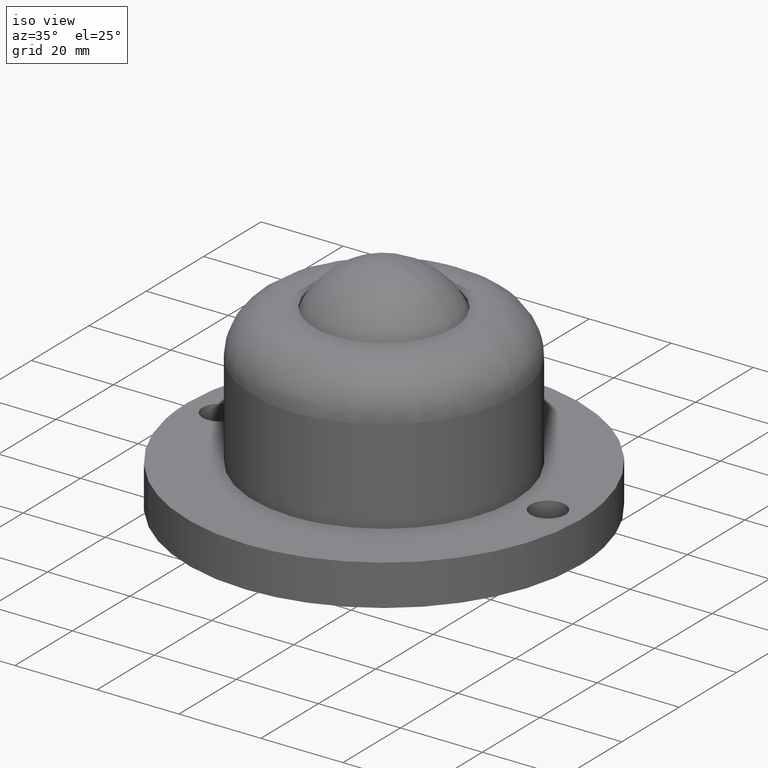
[diagram: clean part render]
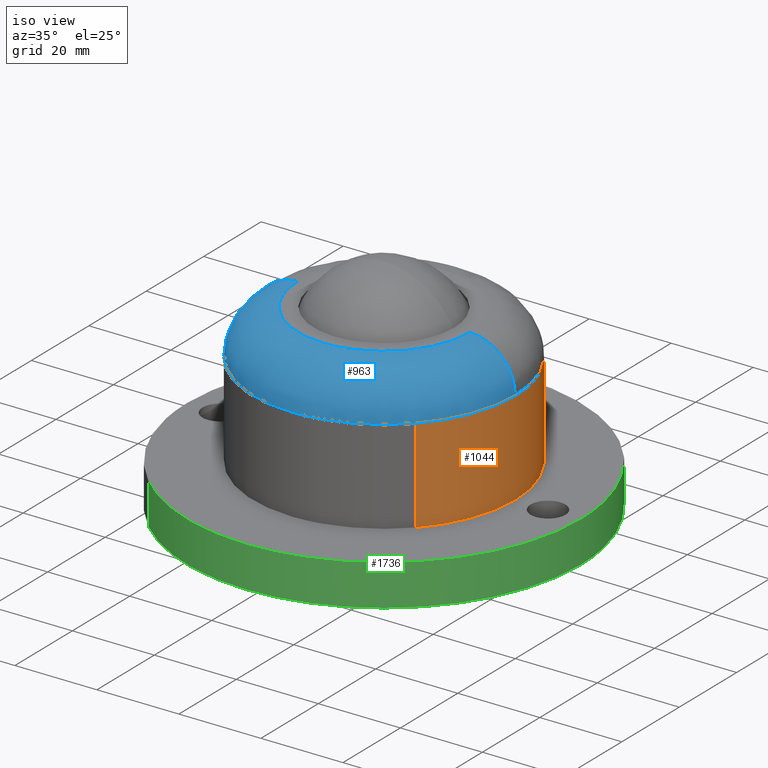
[diagram: same view with three faces highlighted in distinct colors, each labeled with its STEP entity id]
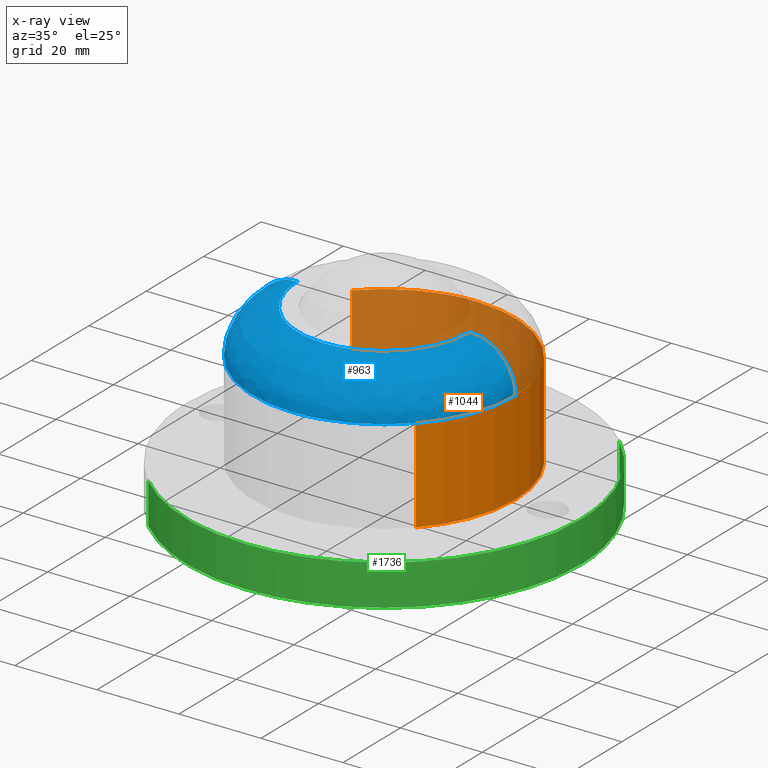
[diagram: x-ray of the same camera — body ghosted, the three highlighted faces saturated]
A machine part, iso view with three faces highlighted in distinct colors.
The next image is the same camera in x-ray (body ghosted, the three faces saturated) — at least one of them is partly hidden behind the body in this view.
Their STEP definitions:

[orange] entity #1044 — the highlighted face is a freeform B-spline surface patch.
#821=CARTESIAN_POINT('',(31.999999999986311,1.751002E-015,32.999987729901001));
#822=VERTEX_POINT('',#821);
#837=CARTESIAN_POINT('',(0.000001200578397,31.999999999999979,32.999987729900852));
#838=VERTEX_POINT('',#837);
#839=CARTESIAN_POINT('',(0.000001200578397,31.999999999999979,32.999987729900852));
#840=CARTESIAN_POINT('',(1.243545933864249,32.000027686290437,32.999987729900802));
#841=CARTESIAN_POINT('',(3.926985982258654,31.843403373049199,32.999987729900937));
#842=CARTESIAN_POINT('',(8.118901102339510,31.063015851764380,32.999987729900909));
#843=CARTESIAN_POINT('',(12.720821336361400,29.511403242763301,32.999987729900951));
#844=CARTESIAN_POINT('',(16.847604723427882,27.338062793029771,32.999987729900397));
#845=CARTESIAN_POINT('',(20.505664823581530,24.676734177825558,32.999987729901427));
#846=CARTESIAN_POINT('',(23.659619054415209,21.710687191173779,32.999987729900617));
#847=CARTESIAN_POINT('',(26.805970803443969,17.754875717246090,32.999987729901171));
#848=CARTESIAN_POINT('',(29.214600667731780,13.378631801025341,32.999987729900951));
#849=CARTESIAN_POINT('',(30.729771445561180,9.184042836501583,32.999987729900973));
#850=CARTESIAN_POINT('',(31.731307148809851,4.908668987190709,32.999987729901122));
#851=CARTESIAN_POINT('',(32.000177443627791,1.898057733687433,32.999987729900923));
#852=CARTESIAN_POINT('',(31.999999999986311,1.751002E-015,32.999987729901001));
#853=B_SPLINE_CURVE_WITH_KNOTS('',3,(#839,#840,#841,#842,#843,#844,#845,#846,#847,#848,#849,#850,#851,#852),.UNSPECIFIED.,.F.,.U.,(4,1,1,1,1,1,1,1,1,1,1,4),(0.000000059490198,3.730641181501298,8.050337676145482,12.762741478385861,18.260537489235571,21.991185462595649,26.310831705121149,31.219625673966689,37.110121125184321,41.233483651612488,44.571424372436752,50.265560632708556),.UNSPECIFIED.);
#854=EDGE_CURVE('',#838,#822,#853,.T.);
#856=CARTESIAN_POINT('',(-23.211979667101119,22.027346203090371,32.999987729899402));
#857=VERTEX_POINT('',#856);
#858=CARTESIAN_POINT('',(-23.211979667101119,22.027346203090371,32.999987729899402));
#859=CARTESIAN_POINT('',(-22.141287610224861,23.155744639412781,32.999987729899459));
#860=CARTESIAN_POINT('',(-20.235954420431529,24.890603156129021,32.999987729899573));
#861=CARTESIAN_POINT('',(-16.759838030516139,27.362894394207139,32.999987729899772));
#862=CARTESIAN_POINT('',(-13.410097302114959,29.155518530625180,32.999987729900113));
#863=CARTESIAN_POINT('',(-9.292722674067973,30.711942111646529,32.999987729900077));
#864=CARTESIAN_POINT('',(-5.004711051205183,31.736766049744020,32.999987729900589));
#865=CARTESIAN_POINT('',(-1.690789872268687,32.000090896721957,32.999987729900631));
#866=CARTESIAN_POINT('',(0.000001200578397,31.999999999999979,32.999987729900852));
#867=B_SPLINE_CURVE_WITH_KNOTS('',3,(#858,#859,#860,#861,#862,#863,#864,#865,#866),.UNSPECIFIED.,.F.,.U.,(4,1,1,1,1,1,4),(0.000000017193727,4.666574535121569,7.710005682946637,12.782395724301090,16.028680193212601,20.898175172383869,25.970543867658691),.UNSPECIFIED.);
#868=EDGE_CURVE('',#857,#838,#867,.T.);
#934=CARTESIAN_POINT('',(23.211979667101279,-22.027346203090509,32.999987729899608));
#935=VERTEX_POINT('',#934);
#947=CARTESIAN_POINT('',(31.999999999986311,1.751002E-015,32.999987729901001));
#948=CARTESIAN_POINT('',(32.000159957052063,-1.834787827132408,32.999987729900823));
#949=CARTESIAN_POINT('',(31.732599955650841,-4.934870290588917,32.999987729900731));
#950=CARTESIAN_POINT('',(30.715407946186922,-9.253250376519157,32.999987729900418));
#951=CARTESIAN_POINT('',(29.159935280067302,-13.476706596797420,32.999987729900120));
#952=CARTESIAN_POINT('',(26.735814424310760,-17.870309519673551,32.999987729899942));
#953=CARTESIAN_POINT('',(24.431483925854881,-20.742409773657990,32.999987729899679));
#954=CARTESIAN_POINT('',(23.211979667101279,-22.027346203090509,32.999987729899608));
#955=B_SPLINE_CURVE_WITH_KNOTS('',3,(#947,#948,#949,#950,#951,#952,#953,#954),.UNSPECIFIED.,.F.,.U.,(4,1,1,1,1,4),(0.000000015655644,5.504338240105604,9.300440323095552,13.286319885507901,18.980484733003429,24.295018669714779),.UNSPECIFIED.);
#956=EDGE_CURVE('',#822,#935,#955,.T.);
#964=CARTESIAN_POINT('',(-23.211979872393201,22.027346422200122,33.574987423148528));
#965=CARTESIAN_POINT('',(-1.184633450193076,45.239326294593326,33.574987423148528));
#966=CARTESIAN_POINT('',(22.027346422200122,23.211979872393201,33.574987423148528));
#967=CARTESIAN_POINT('',(45.239326294593326,1.184633450193076,33.574987423148528));
#968=CARTESIAN_POINT('',(23.211979872393201,-22.027346422200122,33.574987423148528));
#969=CARTESIAN_POINT('',(-23.211979872393201,22.027346422200122,9.410625314421285));
#970=CARTESIAN_POINT('',(-1.184633450193076,45.239326294593326,9.410625314421285));
#971=CARTESIAN_POINT('',(22.027346422200122,23.211979872393201,9.410625314421285));
#972=CARTESIAN_POINT('',(45.239326294593326,1.184633450193076,9.410625314421285));
#973=CARTESIAN_POINT('',(23.211979872393201,-22.027346422200122,9.410625314421285));
#981=(BOUNDED_SURFACE()B_SPLINE_SURFACE(2,1,((#964,#969),(#965,#970),(#966,#971),(#967,#972),(#968,#973)),.UNSPECIFIED.,.F.,.F.,.U.)B_SPLINE_SURFACE_WITH_KNOTS((3,2,3),(2,2),(0.0,53.019335983756150,106.038671967512300),(0.0,24.164362108727250),.UNSPECIFIED.)GEOMETRIC_REPRESENTATION_ITEM()RATIONAL_B_SPLINE_SURFACE(((1.0,1.0),(0.707106781186548,0.707106781186548),(1.0,1.0),(0.707106781186548,0.707106781186548),(1.0,1.0)))REPRESENTATION_ITEM('')SURFACE());
#982=ORIENTED_EDGE('',*,*,#868,.T.);
#983=ORIENTED_EDGE('',*,*,#854,.T.);
#984=ORIENTED_EDGE('',*,*,#956,.T.);
#985=CARTESIAN_POINT('',(23.211979666960371,-22.027346203247070,10.0));
#986=VERTEX_POINT('',#985);
#987=CARTESIAN_POINT('',(23.211979667101279,-22.027346203090509,32.999987729899608));
#988=CARTESIAN_POINT('',(23.211979666960371,-22.027346203247070,10.0));
#989=QUASI_UNIFORM_CURVE('',1,(#987,#988),.UNSPECIFIED.,.F.,.U.);
#990=EDGE_CURVE('',#935,#986,#989,.T.);
#991=ORIENTED_EDGE('',*,*,#990,.T.);
#992=CARTESIAN_POINT('',(32.0,0.0,10.0));
#993=VERTEX_POINT('',#992);
#994=CARTESIAN_POINT('',(32.0,0.0,10.0));
#995=CARTESIAN_POINT('',(32.000269437662681,-2.087872000050106,9.999999999999982));
#996=CARTESIAN_POINT('',(31.658161417563999,-5.567509603386454,10.000000000000091));
#997=CARTESIAN_POINT('',(30.234932523379559,-10.896836373383611,9.999999999999952));
#998=CARTESIAN_POINT('',(28.312507751424839,-15.188894538482410,10.000000000000060));
#999=CARTESIAN_POINT('',(25.794740620607438,-19.070595170512892,9.999999999999888));
#1000=CARTESIAN_POINT('',(24.126581561693360,-21.063619600865490,10.000000000000060));
#1001=CARTESIAN_POINT('',(23.211979666960371,-22.027346203247070,10.0));
#1002=B_SPLINE_CURVE_WITH_KNOTS('',3,(#994,#995,#996,#997,#998,#999,#1000,#1001),.UNSPECIFIED.,.F.,.U.,(4,1,1,1,1,4),(0.000000015658383,6.263560749252644,10.439283806436420,16.513013216121490,20.309120714333108,24.295018669932450),.UNSPECIFIED.);
#1003=EDGE_CURVE('',#993,#986,#1002,.T.);
#1004=ORIENTED_EDGE('',*,*,#1003,.F.);
#1005=CARTESIAN_POINT('',(0.000001200578347,31.999999999999979,10.0));
#1006=VERTEX_POINT('',#1005);
#1007=CARTESIAN_POINT('',(0.000001200578347,31.999999999999979,10.0));
#1008=CARTESIAN_POINT('',(1.636245584874877,32.000109340074467,10.000000000000050));
#1009=CARTESIAN_POINT('',(4.254194050298462,31.798728713616889,9.999999999999931));
#1010=CARTESIAN_POINT('',(8.428567135617239,30.955131616512279,10.000000000000069));
#1011=CARTESIAN_POINT('',(11.977730803919041,29.770580206266231,9.999999999999924));
#1012=CARTESIAN_POINT('',(15.752832163132711,27.942308104812760,10.000000000000041));
#1013=CARTESIAN_POINT('',(19.065179509233701,25.816258119684449,9.999999999999924));
#1014=CARTESIAN_POINT('',(22.468881649237950,22.934431450599149,10.000000000000091));
#1015=CARTESIAN_POINT('',(25.261385473993020,19.795776400596310,9.999999999999984));
#1016=CARTESIAN_POINT('',(27.944309132788870,15.833500355551809,10.000000000000020));
#1017=CARTESIAN_POINT('',(29.908500379386641,11.745752986709791,9.999999999999981));
#1018=CARTESIAN_POINT('',(31.566825500811142,6.217496251051807,9.999999999999975));
#1019=CARTESIAN_POINT('',(32.000546605902571,2.421707089806369,10.000000000000091));
#1020=CARTESIAN_POINT('',(32.0,0.0,10.0));
#1021=B_SPLINE_CURVE_WITH_KNOTS('',3,(#1007,#1008,#1009,#1010,#1011,#1012,#1013,#1014,#1015,#1016,#1017,#1018,#1019,#1020),.UNSPECIFIED.,.F.,.U.,(4,1,1,1,1,1,1,1,1,1,1,4),(0.000000059413651,4.908716488398056,7.853975171335883,12.762741478335560,16.100691256653342,20.420395678650781,24.543770571716120,29.452443596024061,32.986754328216250,38.877275392665062,43.000626834076321,50.265560632722561),.UNSPECIFIED.);
#1022=EDGE_CURVE('',#1006,#993,#1021,.T.);
#1023=ORIENTED_EDGE('',*,*,#1022,.F.);
#1024=CARTESIAN_POINT('',(-23.211979666960222,22.027346203246939,10.0));
#1025=VERTEX_POINT('',#1024);
#1026=CARTESIAN_POINT('',(-23.211979666960222,22.027346203246939,10.0));
#1027=CARTESIAN_POINT('',(-21.722449443151639,23.597440270028240,9.999999999999998));
#1028=CARTESIAN_POINT('',(-18.886999154693651,26.034549689042439,10.000000000000011));
#1029=CARTESIAN_POINT('',(-14.630361477980211,28.561582609681491,9.999999999999995));
#1030=CARTESIAN_POINT('',(-10.646960480821690,30.272979780183341,9.999999999999995));
#1031=CARTESIAN_POINT('',(-5.883845738616866,31.621153278674221,10.000000000000041));
#1032=CARTESIAN_POINT('',(-2.164228328300770,32.000310125885377,9.999999999999925));
#1033=CARTESIAN_POINT('',(0.000001200578347,31.999999999999979,10.0));
#1034=B_SPLINE_CURVE_WITH_KNOTS('',3,(#1026,#1027,#1028,#1029,#1030,#1031,#1032,#1033),.UNSPECIFIED.,.F.,.U.,(4,1,1,1,1,4),(0.000000017184810,6.492636241084387,11.159221814375190,14.811319789417380,19.477907906678549,25.970543867449852),.UNSPECIFIED.);
#1035=EDGE_CURVE('',#1025,#1006,#1034,.T.);
#1036=ORIENTED_EDGE('',*,*,#1035,.F.);
#1037=CARTESIAN_POINT('',(-23.211979667101119,22.027346203090371,32.999987729899402));
#1038=CARTESIAN_POINT('',(-23.211979666960222,22.027346203246939,10.0));
#1039=QUASI_UNIFORM_CURVE('',1,(#1037,#1038),.UNSPECIFIED.,.F.,.U.);
#1040=EDGE_CURVE('',#857,#1025,#1039,.T.);
#1041=ORIENTED_EDGE('',*,*,#1040,.F.);
#1042=EDGE_LOOP('',(#982,#983,#984,#991,#1004,#1023,#1036,#1041));
#1043=FACE_OUTER_BOUND('',#1042,.T.);
#1044=ADVANCED_FACE('',(#1043),#981,.T.);

[blue] entity #963 — the highlighted face is a freeform B-spline surface patch.
#688=CARTESIAN_POINT('',(-0.000000976113527,-20.999999999999979,43.999999999999389));
#689=VERTEX_POINT('',#688);
#690=CARTESIAN_POINT('',(-20.999997413327261,-2.033978E-015,43.999999999999389));
#691=VERTEX_POINT('',#690);
#692=CARTESIAN_POINT('',(-0.000000976113527,-20.999999999999979,43.999999999999389));
#693=CARTESIAN_POINT('',(-1.116732035666109,-21.000078142529951,43.999999999999247));
#694=CARTESIAN_POINT('',(-3.135425807372578,-20.838581369650939,43.999999999999737));
#695=CARTESIAN_POINT('',(-6.073032864250419,-20.169458364671389,43.999999999999467));
#696=CARTESIAN_POINT('',(-8.975706014069022,-19.080424280156969,43.999999999999083));
#697=CARTESIAN_POINT('',(-11.563864665802990,-17.614240535227982,43.999999999999787));
#698=CARTESIAN_POINT('',(-14.153503451073700,-15.618691419540630,43.999999999999233));
#699=CARTESIAN_POINT('',(-16.189002191972349,-13.506936247762690,43.999999999999922));
#700=CARTESIAN_POINT('',(-17.923347164389462,-11.044045552041529,43.999999999999112));
#701=CARTESIAN_POINT('',(-19.384104457697049,-8.311653449624187,43.999999999999623));
#702=CARTESIAN_POINT('',(-20.647614975831338,-4.638608936810559,43.999999999998892));
#703=CARTESIAN_POINT('',(-21.000380305995179,-1.632191777298828,44.000000000000668));
#704=CARTESIAN_POINT('',(-20.999997413327261,-2.033978E-015,43.999999999999389));
#705=B_SPLINE_CURVE_WITH_KNOTS('',3,(#692,#693,#694,#695,#696,#697,#698,#699,#700,#701,#702,#703,#704),.UNSPECIFIED.,.F.,.U.,(4,1,1,1,1,1,1,1,1,1,4),(0.000000078398955,3.350186638450492,6.056161796808787,9.019825423283848,12.627776802179090,14.947172483743429,18.812767538343461,21.389856971215568,23.966949752217591,28.090300257920092,32.986771453957957),.UNSPECIFIED.);
#706=EDGE_CURVE('',#689,#691,#705,.T.);
#708=CARTESIAN_POINT('',(20.999997413327389,1.016989E-015,43.999999999999389));
#709=VERTEX_POINT('',#708);
#710=CARTESIAN_POINT('',(20.999997413327389,1.016989E-015,43.999999999999389));
#711=CARTESIAN_POINT('',(21.000561524950029,-1.804020580174134,43.999999999999382));
#712=CARTESIAN_POINT('',(20.615642023174480,-4.767381403053010,43.999999999999432));
#713=CARTESIAN_POINT('',(19.363117369054049,-8.301628641570867,43.999999999999361));
#714=CARTESIAN_POINT('',(17.916935584272469,-11.089058598707529,43.999999999999602));
#715=CARTESIAN_POINT('',(16.114167657703270,-13.615788222812309,43.999999999999112));
#716=CARTESIAN_POINT('',(13.889964170861401,-15.839901824788990,43.999999999999517));
#717=CARTESIAN_POINT('',(11.624798450596510,-17.552340413406260,43.999999999999183));
#718=CARTESIAN_POINT('',(9.091677478512375,-19.018415186583031,43.999999999999559));
#719=CARTESIAN_POINT('',(6.323001694067767,-20.105943898288562,43.999999999999240));
#720=CARTESIAN_POINT('',(3.178366190209504,-20.832342790957480,43.999999999999929));
#721=CARTESIAN_POINT('',(1.159682241516801,-21.000078830493429,43.999999999997883));
#722=CARTESIAN_POINT('',(-0.000000976113527,-20.999999999999979,43.999999999999389));
#723=B_SPLINE_CURVE_WITH_KNOTS('',3,(#710,#711,#712,#713,#714,#715,#716,#717,#718,#719,#720,#721,#722),.UNSPECIFIED.,.F.,.U.,(4,1,1,1,1,1,1,1,1,1,4),(0.000000078276550,5.411891655248631,8.890968228318219,11.210355634517290,14.818285474464000,18.168490013498729,20.616705952248189,23.322677591532681,26.930621353698111,29.507729787405811,32.986772554267077),.UNSPECIFIED.);
#724=EDGE_CURVE('',#709,#689,#723,.T.);
#802=CARTESIAN_POINT('',(-31.999999999986311,-3.502005E-015,32.999987729900710));
#803=VERTEX_POINT('',#802);
#804=CARTESIAN_POINT('',(-20.999997413327261,-2.033978E-015,43.999999999999389));
#805=CARTESIAN_POINT('',(-21.764946092334959,-2.139082E-015,44.000126715913410));
#806=CARTESIAN_POINT('',(-23.069798107773209,-2.317827E-015,43.863297709735058));
#807=CARTESIAN_POINT('',(-24.933159696576581,-2.571721E-015,43.322952911268217));
#808=CARTESIAN_POINT('',(-26.443751557891421,-2.776458E-015,42.608480803027803));
#809=CARTESIAN_POINT('',(-27.862812681761909,-2.967647E-015,41.647618434263407));
#810=CARTESIAN_POINT('',(-29.259830987355478,-3.154544E-015,40.365910179565603));
#811=CARTESIAN_POINT('',(-30.419442901801759,-3.307709E-015,38.802334662826702));
#812=CARTESIAN_POINT('',(-31.329757438926269,-3.425433E-015,36.937086975131130));
#813=CARTESIAN_POINT('',(-31.871265535400230,-3.492475E-015,35.069826639520151));
#814=CARTESIAN_POINT('',(-32.000057363485517,-3.504673E-015,33.674933945191071));
#815=CARTESIAN_POINT('',(-31.999999999986311,-3.502005E-015,32.999987729900710));
#816=B_SPLINE_CURVE_WITH_KNOTS('',3,(#804,#805,#806,#807,#808,#809,#810,#811,#812,#813,#814,#815),.UNSPECIFIED.,.F.,.U.,(4,1,1,1,1,1,1,1,1,4),(0.000000065254437,2.294828475809483,3.914745925073241,5.804638420121441,7.289527651536217,9.044371080861195,11.474235051414659,13.094149139515210,15.254030237989660,17.278876385191381),.UNSPECIFIED.);
#817=EDGE_CURVE('',#691,#803,#816,.T.);
#821=CARTESIAN_POINT('',(31.999999999986311,1.751002E-015,32.999987729901001));
#822=VERTEX_POINT('',#821);
#823=CARTESIAN_POINT('',(20.999997413327389,1.016989E-015,43.999999999999389));
#824=CARTESIAN_POINT('',(22.079983170216451,1.091184E-015,44.000510024336897));
#825=CARTESIAN_POINT('',(23.834544317193370,1.211207E-015,43.739359189556318));
#826=CARTESIAN_POINT('',(26.094617386635370,1.364659E-015,42.819331782080468));
#827=CARTESIAN_POINT('',(27.881960418326479,1.485187E-015,41.672134004365702));
#828=CARTESIAN_POINT('',(29.315221112076969,1.580929E-015,40.290693387609977));
#829=CARTESIAN_POINT('',(30.345927501103450,1.648927E-015,38.864506483108443));
#830=CARTESIAN_POINT('',(31.111007717660549,1.698666E-015,37.433203375362169));
#831=CARTESIAN_POINT('',(31.795765562385711,1.741938E-015,35.519687364335688));
#832=CARTESIAN_POINT('',(32.000288530546570,1.752885E-015,33.944941988665327));
#833=CARTESIAN_POINT('',(31.999999999986311,1.751002E-015,32.999987729901001));
#834=B_SPLINE_CURVE_WITH_KNOTS('',3,(#823,#824,#825,#826,#827,#828,#829,#830,#831,#832,#833),.UNSPECIFIED.,.F.,.U.,(4,1,1,1,1,1,1,1,4),(0.000000065256945,3.239777431426022,5.264666412598473,7.289527651536275,9.584347239959838,11.204254356088770,12.554178746507510,14.444079576371090,17.278876385191140),.UNSPECIFIED.);
#835=EDGE_CURVE('',#709,#822,#834,.T.);
#884=CARTESIAN_POINT('',(20.237140498162958,0.565764428540412,43.973515634492749));
#885=CARTESIAN_POINT('',(20.237140498162962,0.284529649463927,43.973515634492763));
#886=CARTESIAN_POINT('',(20.237140498162947,-20.237140498162947,43.973515634492763));
#887=CARTESIAN_POINT('',(2.478253E-015,-20.237140498162955,43.973515634492756));
#888=CARTESIAN_POINT('',(-20.237140498162947,-20.237140498162947,43.973515634492763));
#889=CARTESIAN_POINT('',(-20.237140498162958,0.284529649463928,43.973515634492749));
#890=CARTESIAN_POINT('',(-20.237140498162962,0.565764428540420,43.973515634492756));
#891=CARTESIAN_POINT('',(32.855147045798816,0.918522727786811,44.850697251553513));
#892=CARTESIAN_POINT('',(32.855147045798823,0.461935987096374,44.850697251553534));
#893=CARTESIAN_POINT('',(32.855147045798823,-32.855147045798823,44.850697251553513));
#894=CARTESIAN_POINT('',(4.023462E-015,-32.855147045798830,44.850697251553527));
#895=CARTESIAN_POINT('',(-32.855147045798823,-32.855147045798823,44.850697251553513));
#896=CARTESIAN_POINT('',(-32.855147045798816,0.461935987096376,44.850697251553520));
#897=CARTESIAN_POINT('',(-32.855147045798830,0.918522727786824,44.850697251553527));
#898=CARTESIAN_POINT('',(31.973228470411573,0.893867161509133,32.233020902404370));
#899=CARTESIAN_POINT('',(31.973228470411581,0.449536410034909,32.233020902404363));
#900=CARTESIAN_POINT('',(31.973228470411581,-31.973228470411566,32.233020902404370));
#901=CARTESIAN_POINT('',(3.915462E-015,-31.973228470411577,32.233020902404363));
#902=CARTESIAN_POINT('',(-31.973228470411566,-31.973228470411581,32.233020902404370));
#903=CARTESIAN_POINT('',(-31.973228470411577,0.449536410034911,32.233020902404355));
#904=CARTESIAN_POINT('',(-31.973228470411577,0.893867161509145,32.233020902404355));
#912=(BOUNDED_SURFACE()B_SPLINE_SURFACE(2,2,((#884,#891,#898),(#885,#892,#899),(#886,#893,#900),(#887,#894,#901),(#888,#895,#902),(#889,#896,#903),(#890,#897,#904)),.UNSPECIFIED.,.F.,.F.,.U.)B_SPLINE_SURFACE_WITH_KNOTS((3,1,2,1,3),(3,3),(0.0,1.059499589223821,54.034479050416003,107.009458511608200,108.068958100832010),(0.0,20.050018219232712),.UNSPECIFIED.)GEOMETRIC_REPRESENTATION_ITEM()RATIONAL_B_SPLINE_SURFACE(((0.926697961417239,0.606435180617700,0.921565211971852),(0.921332352460620,0.602923902755650,0.916229321788277),(0.647686295673038,0.423848731791093,0.644098922425970),(0.915966743504001,0.599412624893600,0.910893431604703),(0.647686295673038,0.423848731791093,0.644098922425970),(0.921332352460620,0.602923902755650,0.916229321788277),(0.926697961417239,0.606435180617700,0.921565211971852)))REPRESENTATION_ITEM('')SURFACE());
#913=ORIENTED_EDGE('',*,*,#817,.T.);
#914=CARTESIAN_POINT('',(-0.000001200577572,-31.999999999999979,32.999987729900852));
#915=VERTEX_POINT('',#914);
#916=CARTESIAN_POINT('',(-0.000001200577572,-31.999999999999979,32.999987729900852));
#917=CARTESIAN_POINT('',(-1.832593725610284,-32.000151072780000,32.999987729900752));
#918=CARTESIAN_POINT('',(-5.497752245003738,-31.684327462323299,32.999987729900980));
#919=CARTESIAN_POINT('',(-10.134868624449419,-30.462156898002061,32.999987729900766));
#920=CARTESIAN_POINT('',(-14.186550173143701,-28.769199173201741,32.999987729900923));
#921=CARTESIAN_POINT('',(-17.382848748315642,-26.958522463183730,32.999987729900312));
#922=CARTESIAN_POINT('',(-20.601258039579200,-24.586859628417191,32.999987729901022));
#923=CARTESIAN_POINT('',(-23.133926810136099,-22.205010220319711,32.999987729900951));
#924=CARTESIAN_POINT('',(-25.513034237715310,-19.412470190739850,32.999987729900518));
#925=CARTESIAN_POINT('',(-27.738935157128129,-16.168249013861860,32.999987729901150));
#926=CARTESIAN_POINT('',(-29.546892213482082,-12.520944721599770,32.999987729901008));
#927=CARTESIAN_POINT('',(-30.804482787771409,-8.864978046018488,32.999987729900511));
#928=CARTESIAN_POINT('',(-31.731329518767289,-4.908674385122867,32.999987729900852));
#929=CARTESIAN_POINT('',(-32.000169778297497,-1.898056023174957,32.999987729900838));
#930=CARTESIAN_POINT('',(-31.999999999986311,-3.502005E-015,32.999987729900710));
#931=B_SPLINE_CURVE_WITH_KNOTS('',3,(#916,#917,#918,#919,#920,#921,#922,#923,#924,#925,#926,#927,#928,#929,#930),.UNSPECIFIED.,.F.,.U.,(4,1,1,1,1,1,1,1,1,1,1,1,4),(0.000000059422526,5.497765437038808,10.995591271332620,14.333547147425181,18.653262984807011,21.991185462560221,26.310831705091449,29.059765240844179,32.986754328207503,38.091872600391191,41.233483651601553,44.571424372430130,50.265560632709203),.UNSPECIFIED.);
#932=EDGE_CURVE('',#915,#803,#931,.T.);
#933=ORIENTED_EDGE('',*,*,#932,.F.);
#934=CARTESIAN_POINT('',(23.211979667101279,-22.027346203090509,32.999987729899608));
#935=VERTEX_POINT('',#934);
#936=CARTESIAN_POINT('',(23.211979667101279,-22.027346203090509,32.999987729899608));
#937=CARTESIAN_POINT('',(22.141286469020471,-23.155743881221429,32.999987729899637));
#938=CARTESIAN_POINT('',(19.985268988007910,-25.118901211776851,32.999987729899807));
#939=CARTESIAN_POINT('',(16.243951938423479,-27.691453196227592,32.999987729899999));
#940=CARTESIAN_POINT('',(12.056303619602909,-29.781164212077499,32.999987729900198));
#941=CARTESIAN_POINT('',(6.560064939560711,-31.526781858934410,32.999987729900390));
#942=CARTESIAN_POINT('',(2.434781278606721,-32.000493059122093,32.999987729901008));
#943=CARTESIAN_POINT('',(-0.000001200577572,-31.999999999999979,32.999987729900852));
#944=B_SPLINE_CURVE_WITH_KNOTS('',3,(#936,#937,#938,#939,#940,#941,#942,#943),.UNSPECIFIED.,.F.,.U.,(4,1,1,1,1,4),(0.000000017193859,4.666574535121153,8.724485216461694,13.593935224005030,18.666324971839408,25.970543867657959),.UNSPECIFIED.);
#945=EDGE_CURVE('',#935,#915,#944,.T.);
#946=ORIENTED_EDGE('',*,*,#945,.F.);
#947=CARTESIAN_POINT('',(31.999999999986311,1.751002E-015,32.999987729901001));
#948=CARTESIAN_POINT('',(32.000159957052063,-1.834787827132408,32.999987729900823));
#949=CARTESIAN_POINT('',(31.732599955650841,-4.934870290588917,32.999987729900731));
#950=CARTESIAN_POINT('',(30.715407946186922,-9.253250376519157,32.999987729900418));
#951=CARTESIAN_POINT('',(29.159935280067302,-13.476706596797420,32.999987729900120));
#952=CARTESIAN_POINT('',(26.735814424310760,-17.870309519673551,32.999987729899942));
#953=CARTESIAN_POINT('',(24.431483925854881,-20.742409773657990,32.999987729899679));
#954=CARTESIAN_POINT('',(23.211979667101279,-22.027346203090509,32.999987729899608));
#955=B_SPLINE_CURVE_WITH_KNOTS('',3,(#947,#948,#949,#950,#951,#952,#953,#954),.UNSPECIFIED.,.F.,.U.,(4,1,1,1,1,4),(0.000000015655644,5.504338240105604,9.300440323095552,13.286319885507901,18.980484733003429,24.295018669714779),.UNSPECIFIED.);
#956=EDGE_CURVE('',#822,#935,#955,.T.);
#957=ORIENTED_EDGE('',*,*,#956,.F.);
#958=ORIENTED_EDGE('',*,*,#835,.F.);
#959=ORIENTED_EDGE('',*,*,#724,.T.);
#960=ORIENTED_EDGE('',*,*,#706,.T.);
#961=EDGE_LOOP('',(#913,#933,#946,#957,#958,#959,#960));
#962=FACE_OUTER_BOUND('',#961,.T.);
#963=ADVANCED_FACE('',(#962),#912,.T.);

[green] entity #1736 — the highlighted face is a freeform B-spline surface patch.
#1120=CARTESIAN_POINT('',(-33.041019652896992,-34.817969789993143,10.0));
#1121=VERTEX_POINT('',#1120);
#1136=CARTESIAN_POINT('',(0.0,-48.0,10.0));
#1137=VERTEX_POINT('',#1136);
#1138=CARTESIAN_POINT('',(0.0,-48.0,10.0));
#1139=CARTESIAN_POINT('',(-2.752179318103963,-48.000231500622178,9.999999999999989));
#1140=CARTESIAN_POINT('',(-7.402317577465316,-47.598929874962643,10.000000000000041));
#1141=CARTESIAN_POINT('',(-12.861987457992750,-46.312855193958342,9.999999999999965));
#1142=CARTESIAN_POINT('',(-17.277648396175419,-44.848118103084531,10.000000000000091));
#1143=CARTESIAN_POINT('',(-21.032168805530031,-43.232768534212958,9.999999999999801));
#1144=CARTESIAN_POINT('',(-25.107288073819909,-40.984394563092110,10.000000000000270));
#1145=CARTESIAN_POINT('',(-29.046330396756979,-38.329053665193562,9.999999999999723));
#1146=CARTESIAN_POINT('',(-31.664261010611629,-36.124532756605277,10.000000000000210));
#1147=CARTESIAN_POINT('',(-33.041019652896992,-34.817969789993143,10.0));
#1148=B_SPLINE_CURVE_WITH_KNOTS('',3,(#1138,#1139,#1140,#1141,#1142,#1143,#1144,#1145,#1146,#1147),.UNSPECIFIED.,.F.,.U.,(4,1,1,1,1,1,1,4),(8.969764E-009,8.256508677701714,13.950664477356961,16.797748997578481,22.207153769580380,26.193063860686578,30.748393067175449,36.442528228705669),.UNSPECIFIED.);
#1149=EDGE_CURVE('',#1137,#1121,#1148,.T.);
#1151=CARTESIAN_POINT('',(48.0,0.0,10.0));
#1152=VERTEX_POINT('',#1151);
#1153=CARTESIAN_POINT('',(48.0,0.0,10.0));
#1154=CARTESIAN_POINT('',(48.000422227468647,-3.141624674149695,9.999999999999972));
#1155=CARTESIAN_POINT('',(47.525969721656139,-7.952012980444687,10.000000000000020));
#1156=CARTESIAN_POINT('',(46.075042214556781,-13.669300461505429,9.999999999999993));
#1157=CARTESIAN_POINT('',(44.624244386225328,-17.844827958410729,9.999999999999998));
#1158=CARTESIAN_POINT('',(42.979563654373209,-21.524654654680159,10.000000000000020));
#1159=CARTESIAN_POINT('',(40.715745259138863,-25.549590767289470,9.999999999999952));
#1160=CARTESIAN_POINT('',(37.922553925269440,-29.594276717966949,9.999999999999947));
#1161=CARTESIAN_POINT('',(34.428660490432407,-33.594739886924103,10.000000000000080));
#1162=CARTESIAN_POINT('',(30.360899137946159,-37.304348351659463,9.999999999999830));
#1163=CARTESIAN_POINT('',(26.225615232530611,-40.312666894529990,10.000000000000400));
#1164=CARTESIAN_POINT('',(21.708695848710828,-42.908216176157730,9.999999999999478));
#1165=CARTESIAN_POINT('',(17.393996801909239,-44.820776581799223,9.999999999999956));
#1166=CARTESIAN_POINT('',(13.195219341339589,-46.207824612528960,10.000000000000140));
#1167=CARTESIAN_POINT('',(7.559313957407881,-47.564662644718553,9.999999999999858));
#1168=CARTESIAN_POINT('',(3.141628265342322,-48.000464554324289,10.000000000000130));
#1169=CARTESIAN_POINT('',(0.0,-48.0,10.0));
#1170=B_SPLINE_CURVE_WITH_KNOTS('',3,(#1153,#1154,#1155,#1156,#1157,#1158,#1159,#1160,#1161,#1162,#1163,#1164,#1165,#1166,#1167,#1168,#1169),.UNSPECIFIED.,.F.,.U.,(4,1,1,1,1,1,1,1,1,1,1,1,1,1,4),(0.000000022545876,9.424772083686094,14.431712041725220,17.671484173558341,22.678412793443979,26.507253028715191,31.514175364568349,37.404661424544933,42.411529259722428,48.007517756242322,52.719934243648837,58.021383974590108,62.144737623400552,65.973576273495809,75.398341964082235),.UNSPECIFIED.);
#1171=EDGE_CURVE('',#1152,#1137,#1170,.T.);
#1173=CARTESIAN_POINT('',(33.041019652896992,34.817969789993128,10.0));
#1174=VERTEX_POINT('',#1173);
#1175=CARTESIAN_POINT('',(33.041019652896992,34.817969789993128,10.0));
#1176=CARTESIAN_POINT('',(35.248951403414083,32.723295007187282,10.000000000000011));
#1177=CARTESIAN_POINT('',(38.193117181126297,29.341461266294932,10.000000000000020));
#1178=CARTESIAN_POINT('',(41.682854106360622,23.979598927611871,9.999999999999954));
#1179=CARTESIAN_POINT('',(44.457591300620763,18.549557958004229,10.000000000000091));
#1180=CARTESIAN_POINT('',(46.547774646273787,12.377456078430830,9.999999999999968));
#1181=CARTESIAN_POINT('',(47.755186658829743,5.883915350183714,10.000000000000030));
#1182=CARTESIAN_POINT('',(48.000064571097930,2.028944807786052,9.999999999999968));
#1183=CARTESIAN_POINT('',(48.0,0.0,10.0));
#1184=B_SPLINE_CURVE_WITH_KNOTS('',3,(#1175,#1176,#1177,#1178,#1179,#1180,#1181,#1182,#1183),.UNSPECIFIED.,.F.,.U.,(4,1,1,1,1,1,4),(7.693224E-009,9.130267218395847,13.391071942118630,19.173572244197700,27.390806494697589,32.868979003075140,38.955814129606132),.UNSPECIFIED.);
#1185=EDGE_CURVE('',#1174,#1152,#1184,.T.);
#1652=CARTESIAN_POINT('',(33.041019633300181,34.817969808589787,10.250000000000000));
#1653=CARTESIAN_POINT('',(67.858989441889989,1.776950175289614,10.250000000000002));
#1654=CARTESIAN_POINT('',(34.817969808589787,-33.041019633300181,10.250000000000000));
#1655=CARTESIAN_POINT('',(1.776950175289614,-67.858989441889989,10.250000000000002));
#1656=CARTESIAN_POINT('',(-33.041019633300181,-34.817969808589787,10.250000000000000));
#1657=CARTESIAN_POINT('',(33.041019633300181,34.817969808589787,-0.256250000000071));
#1658=CARTESIAN_POINT('',(67.858989441889989,1.776950175289614,-0.256250000000071));
#1659=CARTESIAN_POINT('',(34.817969808589787,-33.041019633300181,-0.256250000000071));
#1660=CARTESIAN_POINT('',(1.776950175289614,-67.858989441889989,-0.256250000000071));
#1661=CARTESIAN_POINT('',(-33.041019633300181,-34.817969808589787,-0.256250000000071));
#1669=(BOUNDED_SURFACE()B_SPLINE_SURFACE(2,1,((#1652,#1657),(#1653,#1658),(#1654,#1659),(#1655,#1660),(#1656,#1661)),.UNSPECIFIED.,.F.,.F.,.U.)B_SPLINE_SURFACE_WITH_KNOTS((3,2,3),(2,2),(0.0,79.529003975634225,159.058007951268510),(0.0,10.506250000000071),.UNSPECIFIED.)GEOMETRIC_REPRESENTATION_ITEM()RATIONAL_B_SPLINE_SURFACE(((1.0,1.0),(0.707106781186548,0.707106781186548),(1.0,1.0),(0.707106781186548,0.707106781186548),(1.0,1.0)))REPRESENTATION_ITEM('')SURFACE());
#1670=ORIENTED_EDGE('',*,*,#1185,.T.);
#1671=ORIENTED_EDGE('',*,*,#1171,.T.);
#1672=ORIENTED_EDGE('',*,*,#1149,.T.);
#1673=CARTESIAN_POINT('',(-33.041019652660879,-34.817969790217191,-6.923154E-014));
#1674=VERTEX_POINT('',#1673);
#1675=CARTESIAN_POINT('',(-33.041019652896992,-34.817969789993143,10.0));
#1676=CARTESIAN_POINT('',(-33.041019652660879,-34.817969790217191,-6.923154E-014));
#1677=QUASI_UNIFORM_CURVE('',1,(#1675,#1676),.UNSPECIFIED.,.F.,.U.);
#1678=EDGE_CURVE('',#1121,#1674,#1677,.T.);
#1679=ORIENTED_EDGE('',*,*,#1678,.T.);
#1680=CARTESIAN_POINT('',(0.0,-48.0,-5.684342E-014));
#1681=VERTEX_POINT('',#1680);
#1682=CARTESIAN_POINT('',(0.0,-48.0,-5.684342E-014));
#1683=CARTESIAN_POINT('',(-2.182758954986194,-48.000103293867831,-5.817750E-014));
#1684=CARTESIAN_POINT('',(-6.263526390621596,-47.721134038974583,-6.050633E-014));
#1685=CARTESIAN_POINT('',(-12.138551031122111,-46.556335553933188,-6.340723E-014));
#1686=CARTESIAN_POINT('',(-17.111093309112832,-44.939471264607427,-6.548889E-014));
#1687=CARTESIAN_POINT('',(-21.625242349733920,-42.933466472465909,-6.705998E-014));
#1688=CARTESIAN_POINT('',(-27.006586947225490,-39.901890187659163,-6.855381E-014));
#1689=CARTESIAN_POINT('',(-30.769553916384581,-36.974050748793360,-6.911996E-014));
#1690=CARTESIAN_POINT('',(-33.041019652660879,-34.817969790217191,-6.923154E-014));
#1691=B_SPLINE_CURVE_WITH_KNOTS('',3,(#1682,#1683,#1684,#1685,#1686,#1687,#1688,#1689,#1690),.UNSPECIFIED.,.F.,.U.,(4,1,1,1,1,1,4),(8.968371E-009,6.548266825377770,12.242420877530920,17.936567243897759,22.207153769379548,27.047188657712312,36.442528228380183),.UNSPECIFIED.);
#1692=EDGE_CURVE('',#1681,#1674,#1691,.T.);
#1693=ORIENTED_EDGE('',*,*,#1692,.F.);
#1694=CARTESIAN_POINT('',(48.0,0.0,0.0));
#1695=VERTEX_POINT('',#1694);
#1696=CARTESIAN_POINT('',(48.0,0.0,0.0));
#1697=CARTESIAN_POINT('',(48.000392704140687,-3.141609203098849,-1.859974E-015));
#1698=CARTESIAN_POINT('',(47.467962498773090,-8.541082507736757,-5.372366E-015));
#1699=CARTESIAN_POINT('',(45.676654071733310,-15.091502476783750,-1.031166E-014));
#1700=CARTESIAN_POINT('',(43.560383273530782,-20.383458958912431,-1.469821E-014));
#1701=CARTESIAN_POINT('',(41.162696165730502,-24.902461637727392,-1.879372E-014));
#1702=CARTESIAN_POINT('',(37.922549189272331,-29.594275307103700,-2.349038E-014));
#1703=CARTESIAN_POINT('',(34.687456546994923,-33.298410948510401,-2.759923E-014));
#1704=CARTESIAN_POINT('',(31.098456031811949,-36.652966318241660,-3.171064E-014));
#1705=CARTESIAN_POINT('',(27.757955608910279,-39.243469599427577,-3.522250E-014));
#1706=CARTESIAN_POINT('',(23.864104080233140,-41.725963900204903,-3.899806E-014));
#1707=CARTESIAN_POINT('',(19.144501132469198,-44.156481917214101,-4.323178E-014));
#1708=CARTESIAN_POINT('',(14.150493211090620,-45.977960623535367,-4.726736E-014));
#1709=CARTESIAN_POINT('',(7.559300230111259,-47.564617984814390,-5.210962E-014));
#1710=CARTESIAN_POINT('',(3.141632682541182,-48.000478926549462,-5.498348E-014));
#1711=CARTESIAN_POINT('',(0.0,-48.0,-5.684342E-014));
#1712=B_SPLINE_CURVE_WITH_KNOTS('',3,(#1696,#1697,#1698,#1699,#1700,#1701,#1702,#1703,#1704,#1705,#1706,#1707,#1708,#1709,#1710,#1711),.UNSPECIFIED.,.F.,.U.,(4,1,1,1,1,1,1,1,1,1,1,1,1,4),(0.000000022545876,9.424772083686094,16.198856410888411,20.322213046508470,26.507253028715191,31.514175364568349,37.404661424544933,41.233466586673188,46.240362761476717,50.069208966631408,55.076130469883893,62.144737623400552,65.973576273495809,75.398341964082235),.UNSPECIFIED.);
#1713=EDGE_CURVE('',#1695,#1681,#1712,.T.);
#1714=ORIENTED_EDGE('',*,*,#1713,.F.);
#1715=CARTESIAN_POINT('',(33.041019652660879,34.817969790217191,-2.986373E-014));
#1716=VERTEX_POINT('',#1715);
#1717=CARTESIAN_POINT('',(33.041019652660879,34.817969790217191,-2.986373E-014));
#1718=CARTESIAN_POINT('',(34.512792052366088,33.421370018186792,-2.814967E-014));
#1719=CARTESIAN_POINT('',(37.555554003458163,30.143208828944740,-2.437023E-014));
#1720=CARTESIAN_POINT('',(41.453311818528441,24.550860196854551,-1.868834E-014));
#1721=CARTESIAN_POINT('',(44.612254276648507,18.169747479407810,-1.296804E-014));
#1722=CARTESIAN_POINT('',(46.559175337463550,12.171326480123589,-8.196293E-015));
#1723=CARTESIAN_POINT('',(47.730610456794693,6.086806055224321,-3.831777E-015));
#1724=CARTESIAN_POINT('',(48.000109669249767,2.231842943958362,-1.346441E-015));
#1725=CARTESIAN_POINT('',(48.0,0.0,0.0));
#1726=B_SPLINE_CURVE_WITH_KNOTS('',3,(#1717,#1718,#1719,#1720,#1721,#1722,#1723,#1724,#1725),.UNSPECIFIED.,.F.,.U.,(4,1,1,1,1,1,4),(7.708053E-009,6.086835134287902,13.391071942240210,20.390916157433669,27.390806494930150,32.260291244372482,38.955814129931497),.UNSPECIFIED.);
#1727=EDGE_CURVE('',#1716,#1695,#1726,.T.);
#1728=ORIENTED_EDGE('',*,*,#1727,.F.);
#1729=CARTESIAN_POINT('',(33.041019652896992,34.817969789993128,10.0));
#1730=CARTESIAN_POINT('',(33.041019652660879,34.817969790217191,-2.986373E-014));
#1731=QUASI_UNIFORM_CURVE('',1,(#1729,#1730),.UNSPECIFIED.,.F.,.U.);
#1732=EDGE_CURVE('',#1174,#1716,#1731,.T.);
#1733=ORIENTED_EDGE('',*,*,#1732,.F.);
#1734=EDGE_LOOP('',(#1670,#1671,#1672,#1679,#1693,#1714,#1728,#1733));
#1735=FACE_OUTER_BOUND('',#1734,.T.);
#1736=ADVANCED_FACE('',(#1735),#1669,.T.);